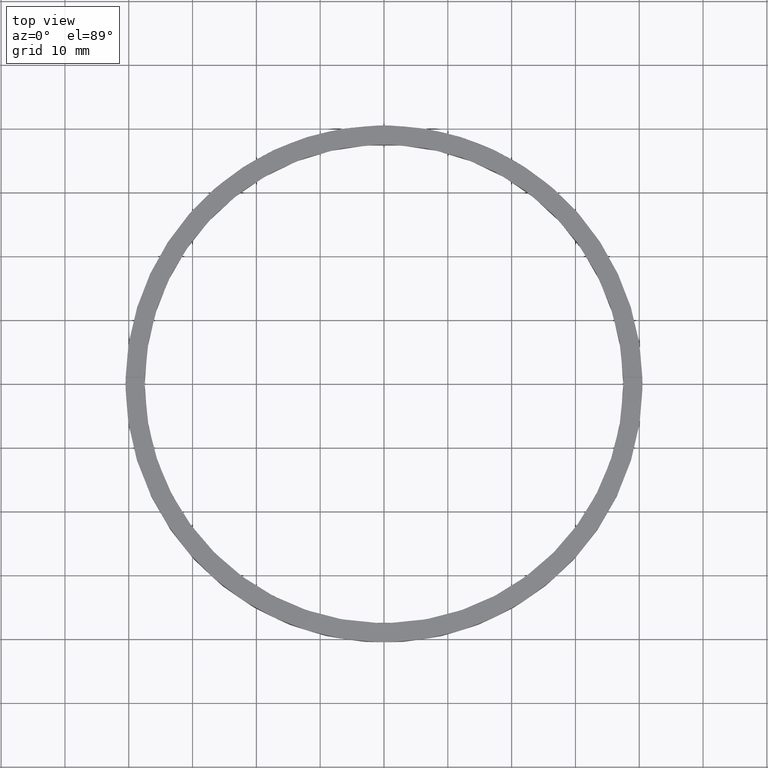
[diagram: clean part render]
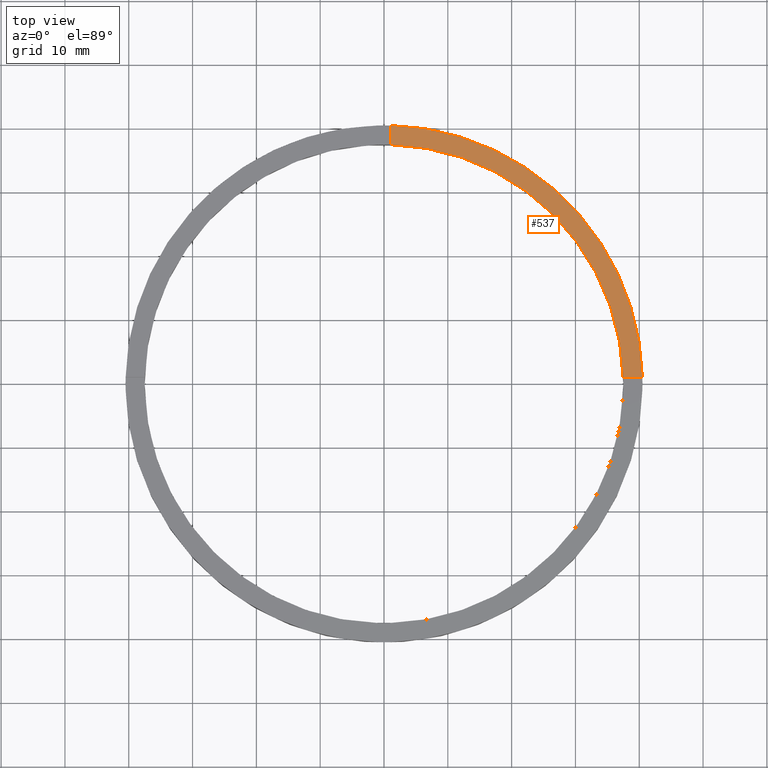
[diagram: same view with one face highlighted and labeled with its STEP entity id]
A machine part, top view. The second image highlights one B-rep face of the part: STEP entity #537.
In plain terms, the highlighted planar face has unit normal (0, 0, 1).
Its self-contained STEP definition (entity closure, byte-faithful):
#18 = EDGE_CURVE ( 'NONE', #411, #484, #639, .T. ) ;
#24 = DIRECTION ( 'NONE',  ( 1.000000000000000000, 0.000000000000000000, 0.000000000000000000 ) ) ;
#91 = CARTESIAN_POINT ( 'NONE',  ( 0.9999999999999744649, 37.48666429545313150, 4.000000000000000000 ) ) ;
#102 = CARTESIAN_POINT ( 'NONE',  ( 30.49999999999999289, 0.9999999999998423483, 4.000000000000000000 ) ) ;
#110 = VERTEX_POINT ( 'NONE', #559 ) ;
#113 = VECTOR ( 'NONE', #381, 1000.000000000000000 ) ;
#115 = CARTESIAN_POINT ( 'NONE',  ( 37.48666429545313150, 0.9999999999998427924, 4.000000000000000000 ) ) ;
#119 = EDGE_LOOP ( 'NONE', ( #663, #396, #662, #625 ) ) ;
#153 = AXIS2_PLACEMENT_3D ( 'NONE', #315, #505, #159 ) ;
#159 = DIRECTION ( 'NONE',  ( 1.000000000000000000, 0.000000000000000000, -0.000000000000000000 ) ) ;
#176 = DIRECTION ( 'NONE',  ( 1.000000000000000000, 0.000000000000000000, 0.000000000000000000 ) ) ;
#202 = CARTESIAN_POINT ( 'NONE',  ( 40.48765243873742037, 0.9999999999998430145, 4.000000000000000000 ) ) ;
#216 = AXIS2_PLACEMENT_3D ( 'NONE', #707, #691, #176 ) ;
#247 = EDGE_CURVE ( 'NONE', #761, #110, #597, .T. ) ;
#307 = PLANE ( 'NONE',  #153 ) ;
#311 = CARTESIAN_POINT ( 'NONE',  ( 0.9999999999999744649, 30.50000000000000000, 4.000000000000000000 ) ) ;
#315 = CARTESIAN_POINT ( 'NONE',  ( 0.000000000000000000, 0.000000000000000000, 4.000000000000000000 ) ) ;
#353 = CIRCLE ( 'NONE', #216, 40.50000000000000000 ) ;
#381 = DIRECTION ( 'NONE',  ( -1.000000000000000000, -6.505213034913025371E-17, -0.000000000000000000 ) ) ;
#396 = ORIENTED_EDGE ( 'NONE', *, *, #669, .F. ) ;
#405 = AXIS2_PLACEMENT_3D ( 'NONE', #485, #535, #24 ) ;
#411 = VERTEX_POINT ( 'NONE', #202 ) ;
#444 = EDGE_CURVE ( 'NONE', #411, #110, #353, .T. ) ;
#484 = VERTEX_POINT ( 'NONE', #115 ) ;
#485 = CARTESIAN_POINT ( 'NONE',  ( 0.000000000000000000, 0.000000000000000000, 4.000000000000000000 ) ) ;
#505 = DIRECTION ( 'NONE',  ( 0.000000000000000000, 0.000000000000000000, 1.000000000000000000 ) ) ;
#535 = DIRECTION ( 'NONE',  ( 0.000000000000000000, 0.000000000000000000, 1.000000000000000000 ) ) ;
#537 = ADVANCED_FACE ( 'NONE', ( #592 ), #307, .T. ) ;
#544 = CIRCLE ( 'NONE', #405, 37.50000000000000711 ) ;
#559 = CARTESIAN_POINT ( 'NONE',  ( 0.9999999999999744649, 40.48765243873742037, 4.000000000000000000 ) ) ;
#591 = VECTOR ( 'NONE', #726, 1000.000000000000000 ) ;
#592 = FACE_OUTER_BOUND ( 'NONE', #119, .T. ) ;
#597 = LINE ( 'NONE', #311, #591 ) ;
#625 = ORIENTED_EDGE ( 'NONE', *, *, #444, .T. ) ;
#639 = LINE ( 'NONE', #102, #113 ) ;
#662 = ORIENTED_EDGE ( 'NONE', *, *, #18, .F. ) ;
#663 = ORIENTED_EDGE ( 'NONE', *, *, #247, .F. ) ;
#669 = EDGE_CURVE ( 'NONE', #484, #761, #544, .T. ) ;
#691 = DIRECTION ( 'NONE',  ( 0.000000000000000000, 0.000000000000000000, 1.000000000000000000 ) ) ;
#707 = CARTESIAN_POINT ( 'NONE',  ( 0.000000000000000000, 0.000000000000000000, 4.000000000000000000 ) ) ;
#726 = DIRECTION ( 'NONE',  ( 0.000000000000000000, 1.000000000000000000, 0.000000000000000000 ) ) ;
#761 = VERTEX_POINT ( 'NONE', #91 ) ;